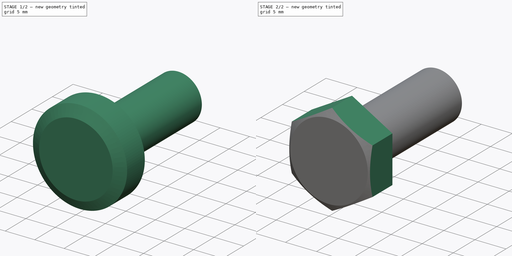
[diagram: build sequence overview — one tinted view per stage of 2, left to right]
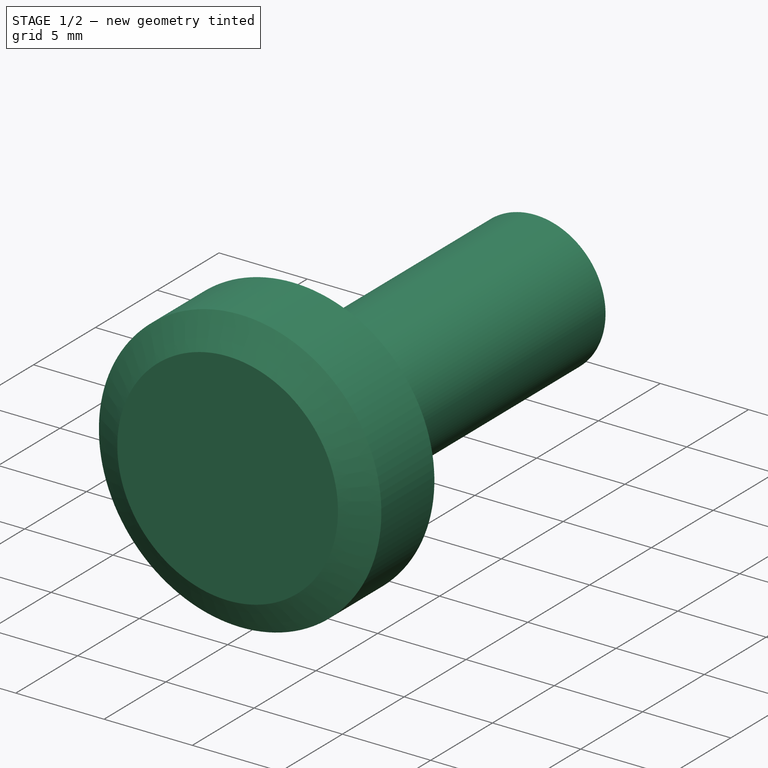
[diagram: stage 1 of 2 — iso view after this stage's code; geometry added in this stage tinted green]
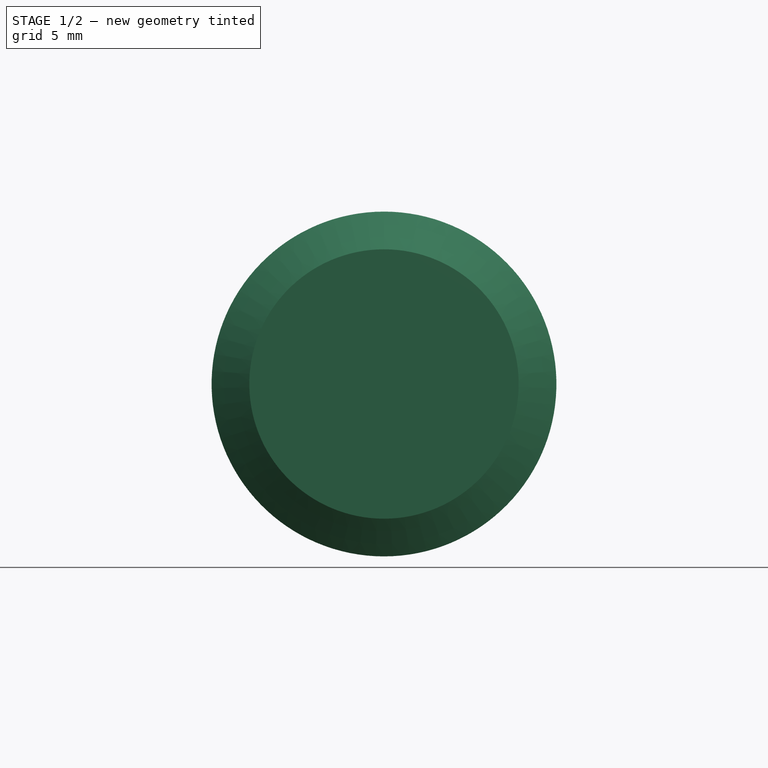
[diagram: stage 1 of 2 — front view after this stage's code; geometry added in this stage tinted green]
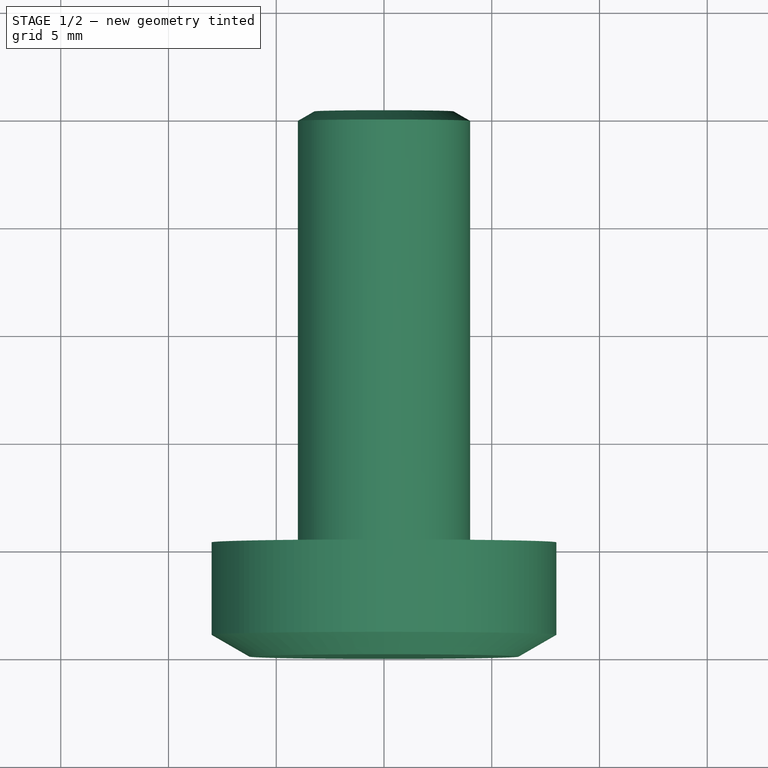
[diagram: stage 1 of 2 — top view after this stage's code; geometry added in this stage tinted green]
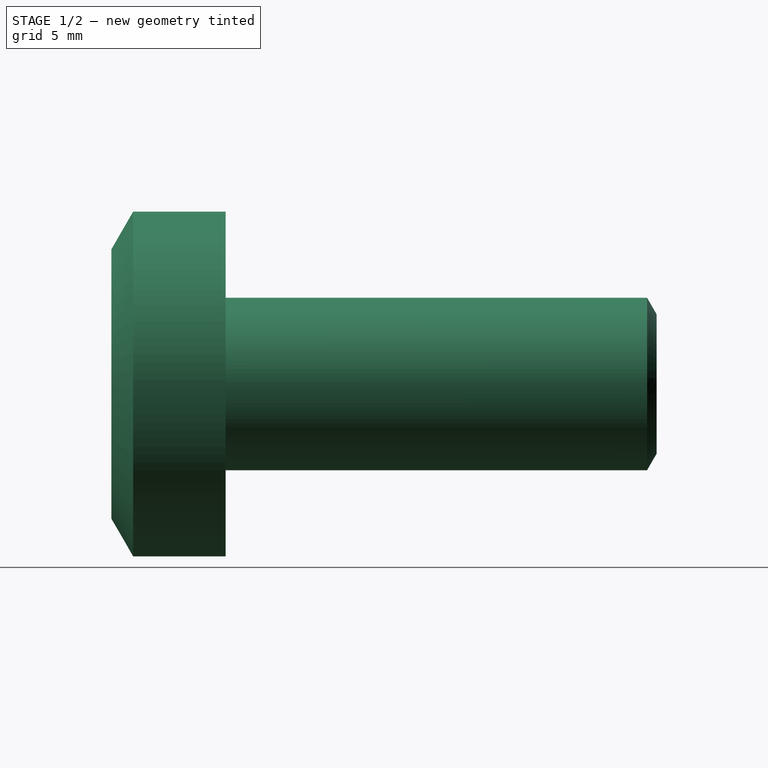
[diagram: stage 1 of 2 — right view after this stage's code; geometry added in this stage tinted green]
FCSTD DOCUMENT  (FreeCAD 0.15R4651 (Git))
Label: Skt-Schraube_DIN933-M8
License: CC-BY 3.0
LicenseURL: http://creativecommons.org/licenses/by/3.0/
objects: Sketcher::SketchObject×2, PartDesign::Revolution×1, PartDesign::Pocket×1
note: 6 computed .brp shape members not serialized (recipe doc carries the construction recipe); baked Part::Feature solids carry a one-line shape summary decoded from their .brp

FEATURE [Sketcher::SketchObject] Sketch
  Placement = pos=(0,0,0) rot=(0.57735,0.57735,0.57735;2.0944rad)
  sketch-geometry (8):
    g0: LineSegment StartX=0 StartY=0 StartZ=0 EndX=0 EndY=6.25 EndZ=0
    g1: LineSegment StartX=0 StartY=6.25 StartZ=0 EndX=1.01036 EndY=8 EndZ=0
    g2: LineSegment StartX=1.01036 StartY=8 StartZ=0 EndX=5.3 EndY=8 EndZ=0
    g3: LineSegment StartX=5.3 StartY=8 StartZ=0 EndX=5.3 EndY=4 EndZ=0
    g4: LineSegment StartX=5.3 StartY=4 StartZ=0 EndX=24.8583 EndY=4 EndZ=0
    g5: LineSegment StartX=24.8583 StartY=4 StartZ=0 EndX=25.3 EndY=3.235 EndZ=0
    g6: LineSegment StartX=25.3 StartY=3.235 StartZ=0 EndX=25.3 EndY=0 EndZ=0
    g7: LineSegment StartX=25.3 StartY=0 StartZ=0 EndX=0 EndY=0 EndZ=0
  constraints (23):
    c: Coincident(g-1,g0)
    c: Vertical(g0)
    c: Coincident(g0,g1)
    c: Coincident(g1,g2)
    c: Horizontal(g2)
    c: Coincident(g2,g3)
    c: Vertical(g3)
    c: Coincident(g3,g4)
    c: Horizontal(g4)
    c: Coincident(g4,g5)
    c: Coincident(g5,g6)
    c: Vertical(g6)
    c: Coincident(g6,g7)
    c: Coincident(g7,g0)
    c: Horizontal(g7)
    c: Angle(g0,g1) = 2.61799
    c: Angle(g5,g6) = 2.61799
    c: DistanceY(g6) = -3.235
    c: DistanceY(g4,g6) = -4
    c: DistanceX(g5,g2) = -20
    c: DistanceX(g2,g0) = -5.3
    c: DistanceY(g-1,g1) = 8
    c: DistanceY(g0) = 6.25
FEATURE [PartDesign::Revolution] Revolution
  Angle = 360
  Axis = (0,1,0)
  Base = (0,0,0)
  Placement = pos=(0,0,0) rot=(0.57735,0.57735,0.57735;2.0944rad)
  ReferenceAxis = -> Sketch [H_Axis]
  Sketch = -> Sketch
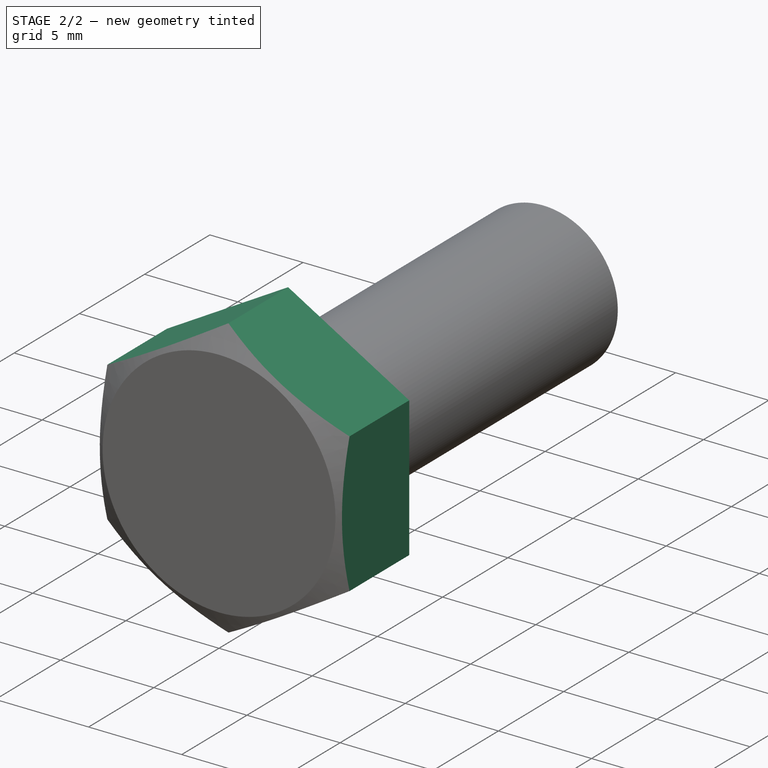
[diagram: stage 2 of 2 — iso view after this stage's code; geometry added in this stage tinted green]
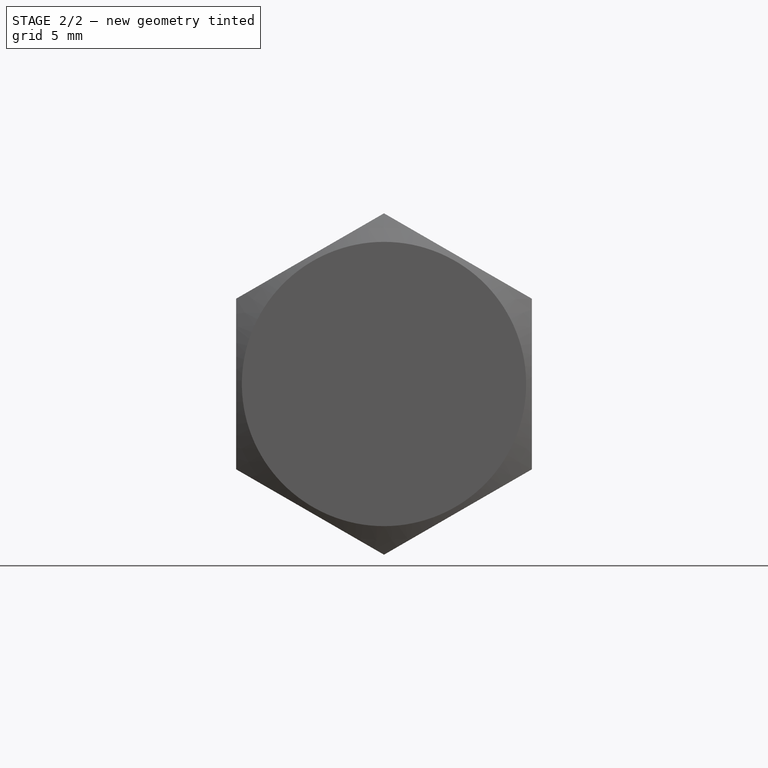
[diagram: stage 2 of 2 — front view after this stage's code; geometry added in this stage tinted green]
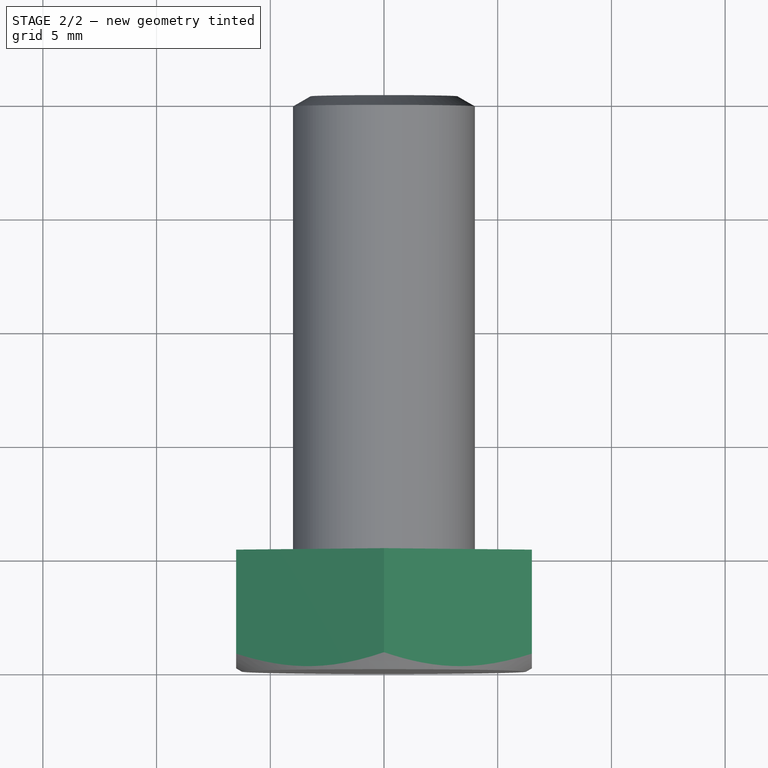
[diagram: stage 2 of 2 — top view after this stage's code; geometry added in this stage tinted green]
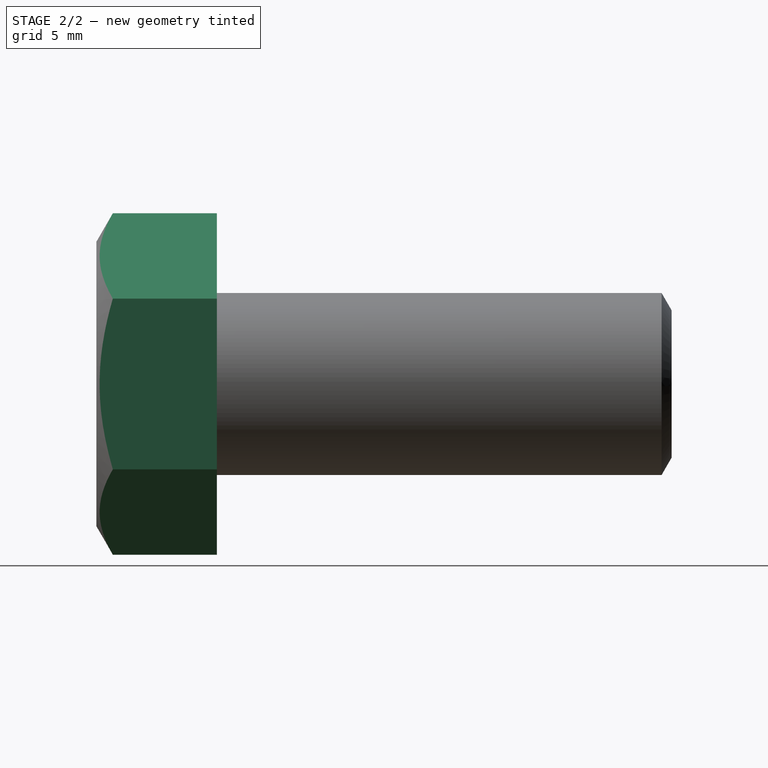
[diagram: stage 2 of 2 — right view after this stage's code; geometry added in this stage tinted green]
FEATURE [Sketcher::SketchObject] Sketch001
  Placement = pos=(0,0,0) rot=(0.57735,0.57735,-0.57735;2.0944rad)
  Support = -> Revolution [Face1]
  sketch-geometry (7):
    g0: LineSegment StartX=-3.75278 StartY=-6.5 StartZ=0 EndX=3.75278 EndY=-6.5 EndZ=0
    g1: LineSegment StartX=3.75278 StartY=-6.5 StartZ=0 EndX=7.50555 EndY=0 EndZ=0
    g2: LineSegment StartX=7.50555 StartY=0 StartZ=0 EndX=3.75278 EndY=6.5 EndZ=0
    g3: LineSegment StartX=3.75278 StartY=6.5 StartZ=0 EndX=-3.75278 EndY=6.5 EndZ=0
    g4: LineSegment StartX=-3.75278 StartY=6.5 StartZ=0 EndX=-7.50555 EndY=0 EndZ=0
    g5: LineSegment StartX=-7.50555 StartY=0 StartZ=0 EndX=-3.75278 EndY=-6.5 EndZ=0
    g6: Circle CenterX=0 CenterY=0 CenterZ=0 NormalX=0 NormalY=0 NormalZ=1 Radius=8
  constraints (20):
    c: Horizontal(g0)
    c: Coincident(g0,g1)
    c: PointOnObject(g1,g-1)
    c: Coincident(g1,g2)
    c: Coincident(g2,g3)
    c: Horizontal(g3)
    c: Coincident(g3,g4)
    c: PointOnObject(g4,g-1)
    c: Coincident(g4,g5)
    c: Coincident(g5,g0)
    c: Equal(g5,g0)
    c: Equal(g0,g1)
    c: Equal(g1,g2)
    c: Equal(g2,g3)
    c: Equal(g3,g4)
    c: Angle(g3,g2) = 2.0944
    c: Symmetric(g2,g3,g-2)
    c: DistanceY(g2,g0) = -13
    c: Coincident(g6,g-1)
    c: Radius(g6) = 8
FEATURE [PartDesign::Pocket] Pocket  label="Skt-Schraube DIN 933 - M8 x 20 #"
  Length = 5
  Placement = pos=(0,0,0) rot=(0.57735,0.57735,0.57735;2.0944rad)
  Sketch = -> Sketch001
  Type = 2
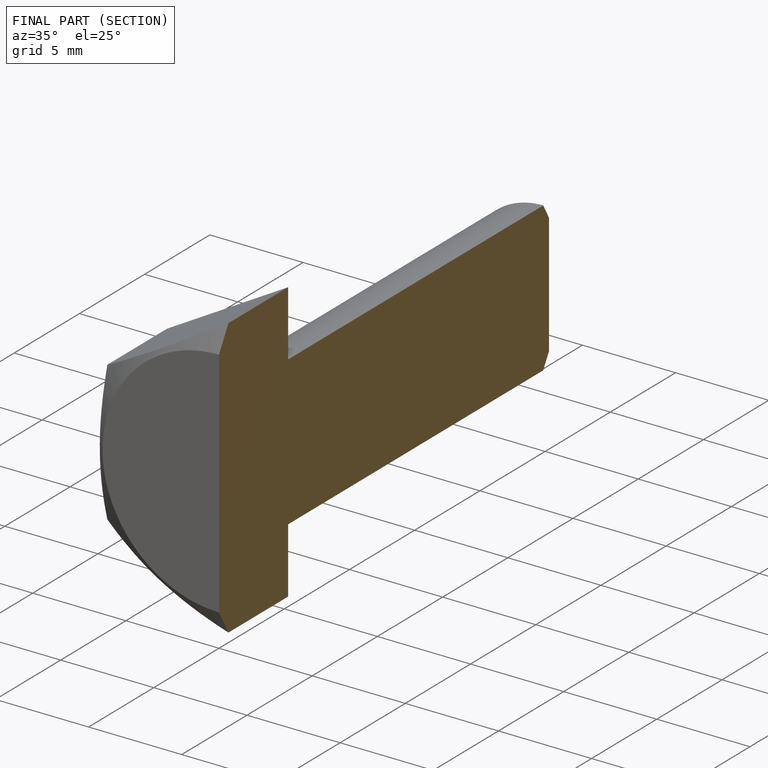
[diagram: finished part — half-section view (interior)]
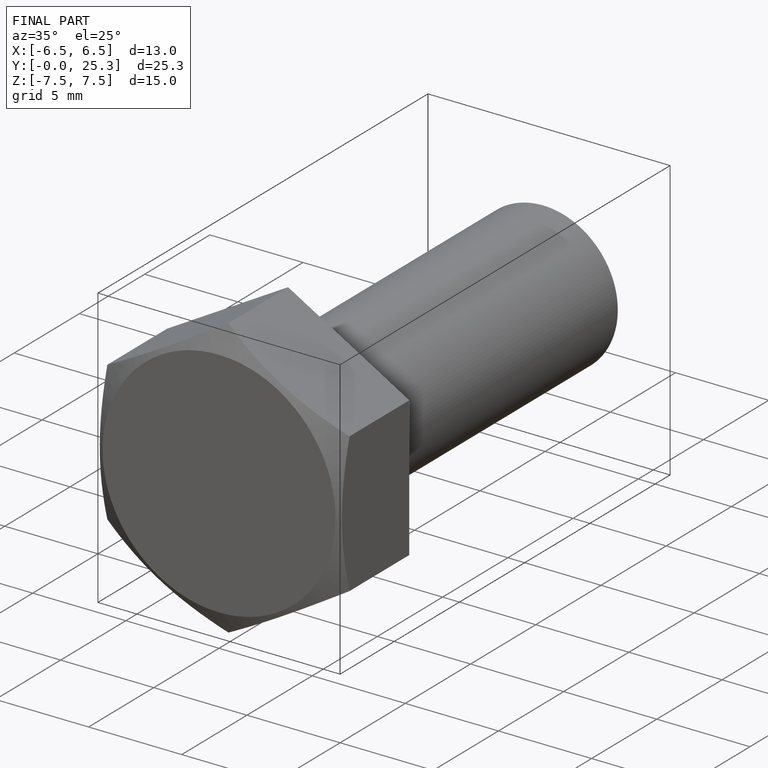
[diagram: finished part — iso view with bounding-box wireframe]
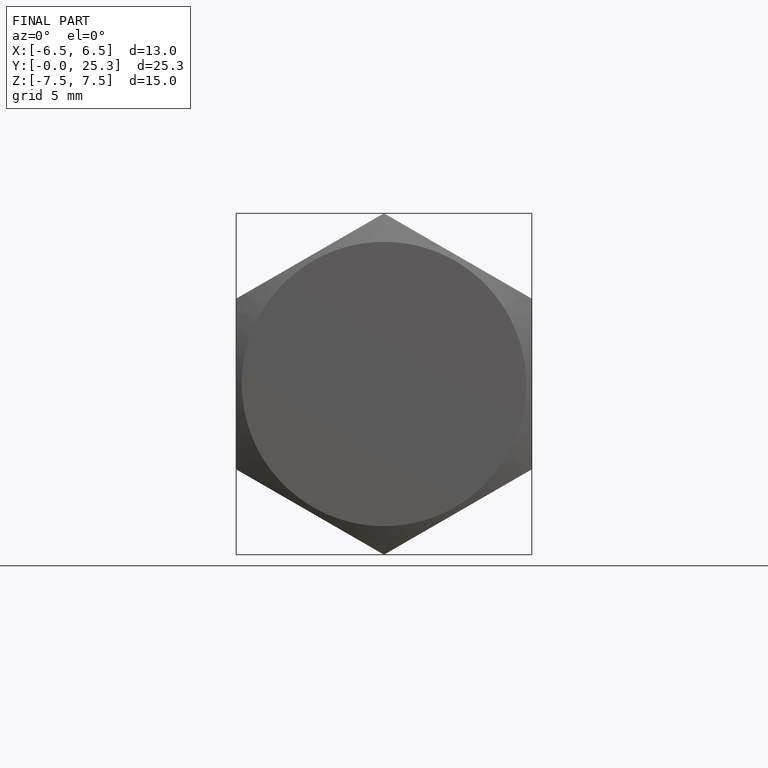
[diagram: finished part — front view with bounding-box wireframe]
